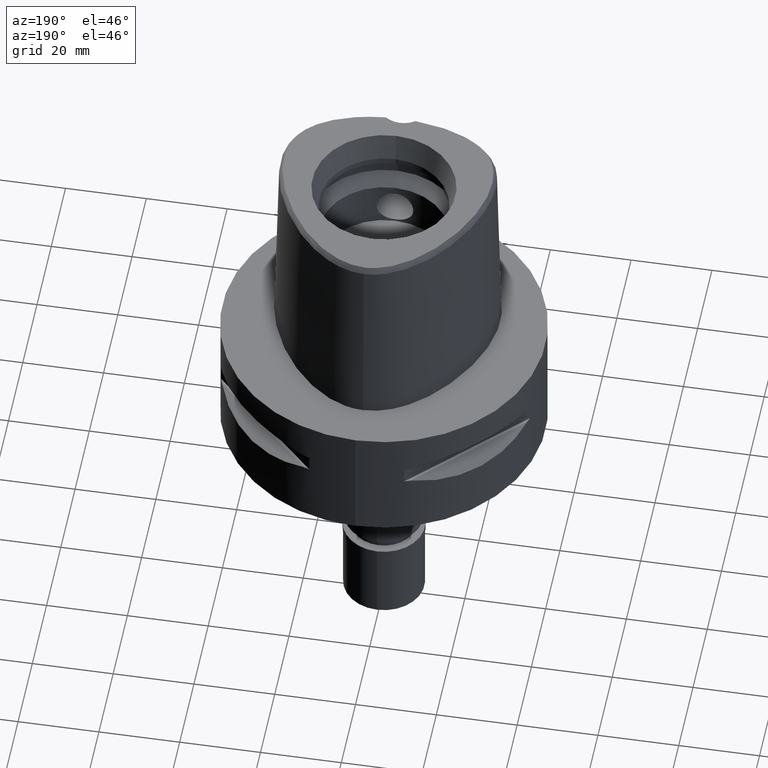
[diagram: clean part render]
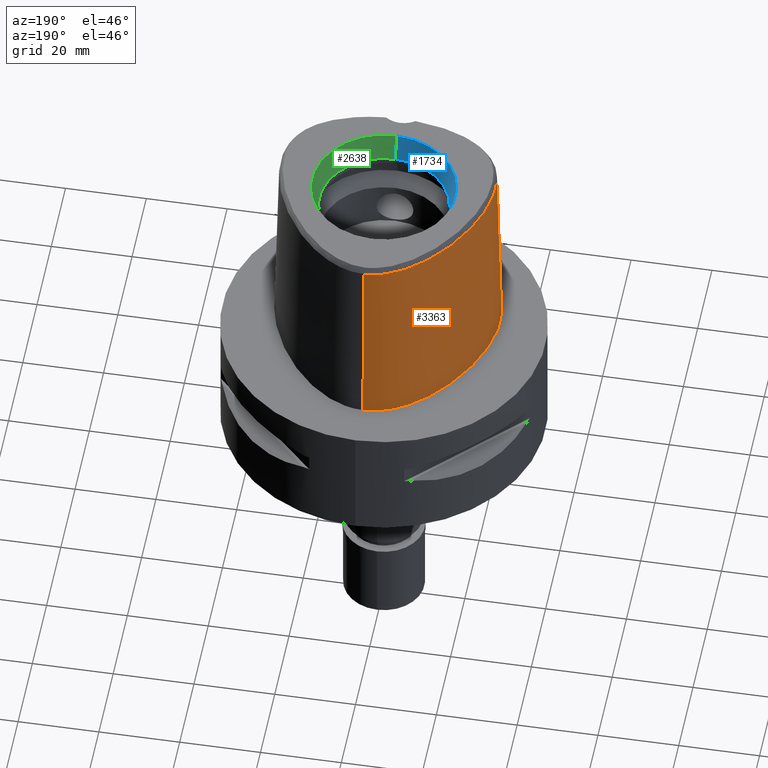
[diagram: same view with three faces highlighted in distinct colors, each labeled with its STEP entity id]
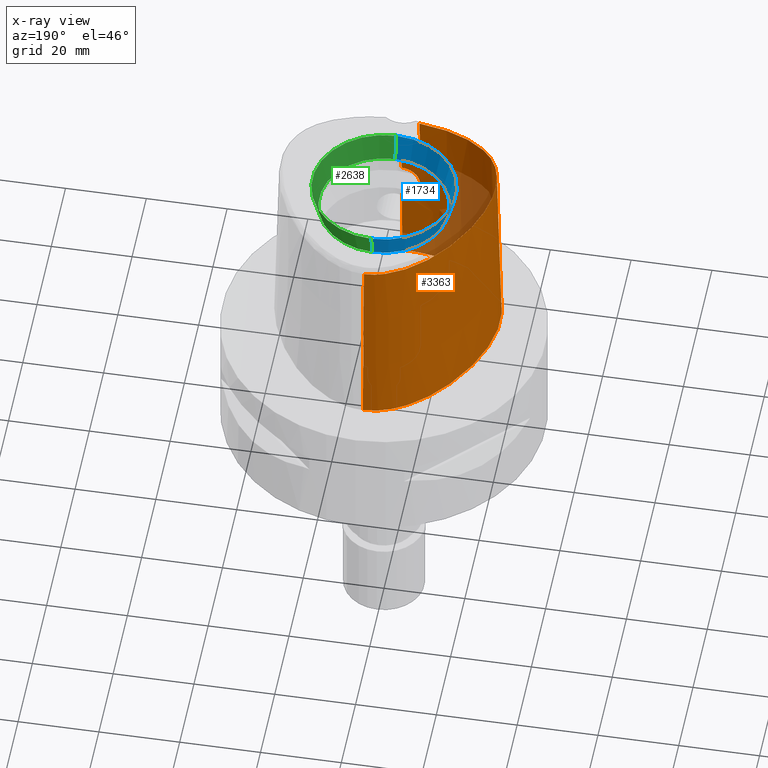
[diagram: x-ray of the same camera — body ghosted, the three highlighted faces saturated]
A machine part, auxiliary view with three faces highlighted in distinct colors.
The next image is the same camera in x-ray (body ghosted, the three faces saturated) — at least one of them is partly hidden behind the body in this view.
Their STEP definitions:

[orange] entity #3363 — the highlighted face is a freeform B-spline surface patch.
#4 = CARTESIAN_POINT ( 'NONE',  ( -12.96695409944999966, 23.75598709830999766, 15.19676982592999970 ) ) ;
#44 = CARTESIAN_POINT ( 'NONE',  ( -2.676740183219916247, -25.57499995757990519, 1.696888613943094842E-06 ) ) ;
#46 = CARTESIAN_POINT ( 'NONE',  ( -21.32746397970353058, 12.31340991043203736, 46.52070903171006933 ) ) ;
#53 = CARTESIAN_POINT ( 'NONE',  ( -22.35908247772999857, 12.90902243054000031, -0.9304144791388000435 ) ) ;
#82 = CARTESIAN_POINT ( 'NONE',  ( 0.5902542486794000176, 29.18556700316999653, 15.19676982592999970 ) ) ;
#92 = CARTESIAN_POINT ( 'NONE',  ( -0.5686770761324537737, -25.06378435148999628, 20.44999999999999574 ) ) ;
#99 = EDGE_CURVE ( 'NONE', #4863, #1665, #3198, .T. ) ;
#133 = CARTESIAN_POINT ( 'NONE',  ( -11.74634101485999871, -24.15815461099999695, -0.9304144791388000435 ) ) ;
#139 = CARTESIAN_POINT ( 'NONE',  ( -2.263615543289000344E-12, -25.06378435148999984, 20.44999999999999929 ) ) ;
#144 = CARTESIAN_POINT ( 'NONE',  ( -1.216282520757000218E-11, 28.41206021534999593, 46.52071719450999154 ) ) ;
#148 = CARTESIAN_POINT ( 'NONE',  ( -17.75297947878194194, 19.52218747291470891, 1.696888613943094842E-06 ) ) ;
#156 = CARTESIAN_POINT ( 'NONE',  ( -23.15870205040999963, -17.49879694150999754, 15.19676982592999970 ) ) ;
#160 = CARTESIAN_POINT ( 'NONE',  ( -4.560196949595972882, -24.30012304335829398, 42.17356967723666372 ) ) ;
#183 = CARTESIAN_POINT ( 'NONE',  ( -21.19046239198000237, -19.29498367019000327, 15.19676982592999970 ) ) ;
#213 = CARTESIAN_POINT ( 'NONE',  ( -26.90338677649999966, -8.653104855005999241, 31.32395413101000159 ) ) ;
#232 = EDGE_CURVE ( 'NONE', #4642, #3225, #4307, .T. ) ;
#251 = CARTESIAN_POINT ( 'NONE',  ( -4.160790905028489917, -24.72274124955079699, 26.84178595757723684 ) ) ;
#281 = CARTESIAN_POINT ( 'NONE',  ( -3.459328791567589878, -24.75086403572737836, 27.97515479135393690 ) ) ;
#310 = CARTESIAN_POINT ( 'NONE',  ( -4.068466760398210091, -24.72584630863896749, 27.03834969240105934 ) ) ;
#334 = CARTESIAN_POINT ( 'NONE',  ( -4.515545264917622426, -24.72200876241189249, 25.57765437788226492 ) ) ;
#346 = CARTESIAN_POINT ( 'NONE',  ( -12.44957317646186823, 23.16260189108908563, 46.52070903171006933 ) ) ;
#365 = CARTESIAN_POINT ( 'NONE',  ( -4.201380620708011548, -24.72153596869751624, 26.74670933510338600 ) ) ;
#371 = CARTESIAN_POINT ( 'NONE',  ( -15.29776364740622085, -22.96525386664651691, 1.696888613943094842E-06 ) ) ;
#389 = CARTESIAN_POINT ( 'NONE',  ( -1.754298049354468203, -25.02308377135080519, 20.80178576367021037 ) ) ;
#409 = CARTESIAN_POINT ( 'NONE',  ( -9.105791465440999488, 26.46675914470000279, 15.19676982592999970 ) ) ;
#416 = CARTESIAN_POINT ( 'NONE',  ( -3.864901861996108412, -24.85421915751041411, 22.59833191710549727 ) ) ;
#423 = CARTESIAN_POINT ( 'NONE',  ( -26.52477687770654668, -8.605158286269318779, 46.52070903171006933 ) ) ;
#430 = VERTEX_POINT ( 'NONE', #4848 ) ;
#434 = B_SPLINE_CURVE_WITH_KNOTS ( 'NONE', 3,
 ( #4468, #3697, #951, #4857, #2124, #3283, #148, #1334, #2893, #2511, #4083, #551, #2412, #2773, #4653, #1214, #2034, #3603, #2364, #1626, #371, #4345, #1139, #44, #2340 ),
 .UNSPECIFIED., .F., .F.,
 ( 4, 1, 1, 1, 1, 1, 1, 1, 1, 1, 1, 1, 1, 1, 1, 1, 1, 1, 1, 1, 1, 1, 4 ),
 ( 0.0000000000000000000, 0.04166666666717999679, 0.08333333333381000296, 0.1250000000004000134, 0.1666666666671000052, 0.2500000000002999823, 0.3333333333335999904, 0.4166666666668999985, 0.4583333333335000148, 0.5000000000001000311, 0.5416666666667999674, 0.5833333333333999837, 0.6250000000000000000, 0.6458333333333000637, 0.6666666666667000474, 0.6875000000000000000, 0.7083333333333000637, 0.7499999999999000799, 0.7916666666666000163, 0.8333333333332000326, 0.8749999999998000488, 0.9166666666664999852, 1.000000000000000000 ),
 .UNSPECIFIED. ) ;
#435 = CARTESIAN_POINT ( 'NONE',  ( 0.9115101685829000155, 29.56851176004000337, -0.9304144791388000435 ) ) ;
#445 = CARTESIAN_POINT ( 'NONE',  ( -2.039991806422710940, -25.00858519317930728, 20.93235562228155189 ) ) ;
#463 = CARTESIAN_POINT ( 'NONE',  ( -8.894849813582998976, 26.12169678294999997, 31.32395413101000159 ) ) ;
#471 = CARTESIAN_POINT ( 'NONE',  ( -3.245740051672679094, -24.92006245179830159, 21.81130774429479047 ) ) ;
#485 = CARTESIAN_POINT ( 'NONE',  ( -25.23075706188000211, 6.836210430589999554, -0.9304144791388000435 ) ) ;
#539 = CARTESIAN_POINT ( 'NONE',  ( -21.43542293252000164, -19.61750339135999965, -0.9304144791388000435 ) ) ;
#551 = CARTESIAN_POINT ( 'NONE',  ( -27.85475985490824158, -5.337968751067124096, 1.696888613943094842E-06 ) ) ;
#557 = CARTESIAN_POINT ( 'NONE',  ( -25.63065467244999951, -13.07945040987999974, 31.32395413101000159 ) ) ;
#579 = CARTESIAN_POINT ( 'NONE',  ( -27.06950059915999773, -5.357664959750001010, 31.32395413101000159 ) ) ;
#603 = CARTESIAN_POINT ( 'NONE',  ( 4.150897834611000279E-11, 29.57499999998999840, 1.066184177981999759E-13 ) ) ;
#608 = CARTESIAN_POINT ( 'NONE',  ( -24.46791223481000088, -15.89630654066999682, 15.19676982592999970 ) ) ;
#633 = CARTESIAN_POINT ( 'NONE',  ( -23.81701507534000228, -15.41783917288999994, 47.45113843608000082 ) ) ;
#645 = CARTESIAN_POINT ( 'NONE',  ( -4.409270466778650643, -24.71744676443888977, 26.16158622814598544 ) ) ;
#654 = EDGE_CURVE ( 'NONE', #3971, #4581, #434, .T. ) ;
#675 = CARTESIAN_POINT ( 'NONE',  ( -4.192714366872922760, -24.72178541175453148, 26.76740225217009339 ) ) ;
#706 = CARTESIAN_POINT ( 'NONE',  ( -3.900686180406078840, -24.73222278675475749, 27.34720371156313234 ) ) ;
#733 = CARTESIAN_POINT ( 'NONE',  ( -2.771982096821981045, -24.77983138410381869, 28.61121349796220770 ) ) ;
#757 = VECTOR ( 'NONE', #1257, 1000.000000000000000 ) ;
#761 = CARTESIAN_POINT ( 'NONE',  ( -4.183313010704308610, -24.72206008749306250, 26.78965014441773462 ) ) ;
#790 = CARTESIAN_POINT ( 'NONE',  ( -4.098306025962060950, -24.82420565877258767, 23.01795395542336209 ) ) ;
#801 = EDGE_CURVE ( 'NONE', #3225, #4581, #2749, .T. ) ;
#809 = CARTESIAN_POINT ( 'NONE',  ( 0.8850788443564999719, 29.16624661382000028, 15.19676982592999970 ) ) ;
#816 = CARTESIAN_POINT ( 'NONE',  ( -1.979024681901998317, -25.01188081594395030, 20.90239184516330795 ) ) ;
#824 = CARTESIAN_POINT ( 'NONE',  ( -25.64632274977693527, 1.601536978524827237, 46.52070903171006933 ) ) ;
#831 = CARTESIAN_POINT ( 'NONE',  ( 1.351075727145000046E-14, -24.83629963747999980, 29.55000000000000071 ) ) ;
#833 = CARTESIAN_POINT ( 'NONE',  ( -26.01411826823999718, 1.699187959295999972, 31.32395413101000159 ) ) ;
#848 = VECTOR ( 'NONE', #1548, 1000.000000000000000 ) ;
#870 = CARTESIAN_POINT ( 'NONE',  ( -3.613911253851773697, -24.88311648731248127, 22.23154152753994950 ) ) ;
#878 = CARTESIAN_POINT ( 'NONE',  ( -25.97777222568468858, -11.09135444108463631, 46.52070903171006933 ) ) ;
#886 = CARTESIAN_POINT ( 'NONE',  ( -0.6821018004605000629, 28.41983321172000032, 47.45113843608000082 ) ) ;
#895 = CARTESIAN_POINT ( 'NONE',  ( -3.310528231614962014, -24.91386642802240559, 21.87824841565021217 ) ) ;
#911 = CARTESIAN_POINT ( 'NONE',  ( -22.00846693021000178, 12.70659196787999967, 15.19676982592999970 ) ) ;
#936 = CARTESIAN_POINT ( 'NONE',  ( -6.695047936512000142, -25.26858194627000032, -0.9304144791388000435 ) ) ;
#951 = CARTESIAN_POINT ( 'NONE',  ( -3.149084865348400708, 29.34015620829518411, 1.696888613943094842E-06 ) ) ;
#982 = CARTESIAN_POINT ( 'NONE',  ( -17.98126123960000200, -20.40884543518999905, 47.45113843608000082 ) ) ;
#1002 = CARTESIAN_POINT ( 'NONE',  ( -2.373852718314000132, -25.21827345063000081, 15.19676982592999970 ) ) ;
#1031 = CARTESIAN_POINT ( 'NONE',  ( -20.94550185143999954, -18.97246394901000244, 31.32395413101000159 ) ) ;
#1044 = CARTESIAN_POINT ( 'NONE',  ( -2.249867388151588266, -24.79844751147267345, 28.95562542824131214 ) ) ;
#1068 = CARTESIAN_POINT ( 'NONE',  ( -4.231109674115412389, -24.80473516988229221, 23.32640847146424079 ) ) ;
#1079 = ORIENTED_EDGE ( 'NONE', *, *, #232, .F. ) ;
#1098 = CARTESIAN_POINT ( 'NONE',  ( -4.322680882349038356, -24.71812462909619512, 26.45319451590574644 ) ) ;
#1129 = CARTESIAN_POINT ( 'NONE',  ( -2.352923008994420861, -24.79499099983765475, 28.89459205334127034 ) ) ;
#1139 = CARTESIAN_POINT ( 'NONE',  ( -6.691850457994067192, -25.24546870784832464, 1.696888613943094842E-06 ) ) ;
#1158 = CARTESIAN_POINT ( 'NONE',  ( -3.205390121191868502, -24.76204090357539656, 28.22925085367149833 ) ) ;
#1182 = CARTESIAN_POINT ( 'NONE',  ( -2.724936705861479957, -24.96514019468438050, 21.34399272640474621 ) ) ;
#1190 = CARTESIAN_POINT ( 'NONE',  ( -4.602965076336000827, -24.35127131300999892, 40.00000000000000000 ) ) ;
#1214 = CARTESIAN_POINT ( 'NONE',  ( -25.63812386178506131, -14.80217771312856989, 1.696888613943094842E-06 ) ) ;
#1247 = CARTESIAN_POINT ( 'NONE',  ( -26.40443226301999857, 1.802817673322000047, 15.19676982592999970 ) ) ;
#1257 = DIRECTION ( 'NONE',  ( 1.153357997481029958E-12, 0.02499051293969065113, -0.9996876883622259902 ) ) ;
#1265 = CARTESIAN_POINT ( 'NONE',  ( -17.99241701171383312, -20.42933791837154445, 46.52070903171006933 ) ) ;
#1275 = CARTESIAN_POINT ( 'NONE',  ( -9.316733117297999911, 26.81182150644999851, -0.9304144791388000435 ) ) ;
#1300 = CARTESIAN_POINT ( 'NONE',  ( -21.30723583517000108, 12.30173104254999927, 47.45113843608000082 ) ) ;
#1320 = CARTESIAN_POINT ( 'NONE',  ( -26.73375370635000081, -11.30662581569000125, 15.19676982592999970 ) ) ;
#1334 = CARTESIAN_POINT ( 'NONE',  ( -22.33885462078929152, 12.89734372870236356, 1.696888613943094842E-06 ) ) ;
#1346 = CARTESIAN_POINT ( 'NONE',  ( -23.44929528159000043, -17.78045351951999820, -0.9304144791388000435 ) ) ;
#1372 = CARTESIAN_POINT ( 'NONE',  ( -25.26074793594000312, -12.91722051572000218, 47.45113843608000082 ) ) ;
#1392 = CARTESIAN_POINT ( 'NONE',  ( -20.70054131090000027, -18.64994422783999894, 47.45113843608000082 ) ) ;
#1414 = CARTESIAN_POINT ( 'NONE',  ( -6.528779356825999081, -24.06669574034000192, 47.45113843608000082 ) ) ;
#1459 = CARTESIAN_POINT ( 'NONE',  ( -4.550009659928393901, -24.73228693208369222, 25.03285394944880338 ) ) ;
#1464 = CARTESIAN_POINT ( 'NONE',  ( -1.541632273122166996, -24.57506718850696004, 40.00000010702067499 ) ) ;
#1482 = CARTESIAN_POINT ( 'NONE',  ( -1.722296434335556237, -24.81387508079694015, 29.21144792399115886 ) ) ;
#1510 = CARTESIAN_POINT ( 'NONE',  ( -4.340344041599786706, -24.78724112967248416, 23.63256450709621959 ) ) ;
#1541 = CARTESIAN_POINT ( 'NONE',  ( -2.404910036726956246, -24.79321437770926195, 28.86288751849652456 ) ) ;
#1548 = DIRECTION ( 'NONE',  ( -7.796119249352742759E-13, -0.02499051295403921166, -0.9996876883618673881 ) ) ;
#1549 = CARTESIAN_POINT ( 'NONE',  ( -23.83579125613339400, -15.43164133759503187, 46.52070903171006933 ) ) ;
#1554 = ORIENTED_EDGE ( 'NONE', *, *, #2233, .F. ) ;
#1566 = CARTESIAN_POINT ( 'NONE',  ( -3.172181247291940842, -24.76348918694393575, 28.26195868750457763 ) ) ;
#1573 = CARTESIAN_POINT ( 'NONE',  ( -20.71467387648102942, -18.66855143331303424, 46.52070903171006933 ) ) ;
#1582 = EDGE_CURVE ( 'NONE', #430, #1665, #2035, .T. ) ;
#1590 = CARTESIAN_POINT ( 'NONE',  ( -3.790579096131127645, -24.86307050843588584, 22.48323682071579910 ) ) ;
#1611 = CARTESIAN_POINT ( 'NONE',  ( -17.77103258632999783, 19.53703864451000172, -0.9304144791388000435 ) ) ;
#1626 = CARTESIAN_POINT ( 'NONE',  ( -18.55019647048347409, -21.45394527512893745, 1.696888613943094842E-06 ) ) ;
#1628 = CARTESIAN_POINT ( 'NONE',  ( -8.696078067630306663, 25.79654218449210745, 46.52070903171006933 ) ) ;
#1636 = CARTESIAN_POINT ( 'NONE',  ( -6.271543170535000655, 28.37237220527000048, -0.9304144791388000435 ) ) ;
#1645 = CARTESIAN_POINT ( 'NONE',  ( -1.769098408929655308, -25.02238666794958277, 20.80800104489354752 ) ) ;
#1660 = CARTESIAN_POINT ( 'NONE',  ( 0.8586475201301000393, 28.76398146759999719, 31.32395413101000159 ) ) ;
#1665 = VERTEX_POINT ( 'NONE', #3688 ) ;
#1690 = CARTESIAN_POINT ( 'NONE',  ( -16.83227270593999947, 18.76477913000999820, 47.45113843608000082 ) ) ;
#1711 = CARTESIAN_POINT ( 'NONE',  ( 0.8392169872735000258, -24.78463084256999949, 31.32395413101000159 ) ) ;
#1730 = CARTESIAN_POINT ( 'NONE',  ( 0.5642418783912999114, -25.19264542562000031, 15.19676982592999970 ) ) ;
#1754 = CARTESIAN_POINT ( 'NONE',  ( -27.70696775908000120, -8.754869100840998897, -0.9304144791388000435 ) ) ;
#1777 = CARTESIAN_POINT ( 'NONE',  ( -22.57751558802999980, -16.93548378546999800, 47.45113843608000082 ) ) ;
#1800 = CARTESIAN_POINT ( 'NONE',  ( -24.95856549451000106, -14.40983450638000107, 31.32395413101000159 ) ) ;
#1839 = CARTESIAN_POINT ( 'NONE',  ( -4.536359085940564029, -24.72544551544398317, 25.35955479186922545 ) ) ;
#1865 = CARTESIAN_POINT ( 'NONE',  ( -3.211065830876047134, -24.76179211193618102, 28.22361125334782628 ) ) ;
#1888 = CARTESIAN_POINT ( 'NONE',  ( -4.549921019085021889, -24.74001865967040459, 24.72536366591950241 ) ) ;
#1916 = CARTESIAN_POINT ( 'NONE',  ( -4.547910621292600375, -24.72974527037217740, 25.14250056300025093 ) ) ;
#1943 = CARTESIAN_POINT ( 'NONE',  ( -4.212409792926640861, -24.80756021599265893, 23.28005703556031847 ) ) ;
#1967 = CARTESIAN_POINT ( 'NONE',  ( -3.265305598819550958, -24.91820214815111356, 21.83126415608266413 ) ) ;
#1995 = CARTESIAN_POINT ( 'NONE',  ( -3.808704889424058493, -24.86093372512832289, 22.51074749453148272 ) ) ;
#2014 = CARTESIAN_POINT ( 'NONE',  ( 0.5727458549800999998, 28.78269979262000078, 31.32395413101000159 ) ) ;
#2025 = CARTESIAN_POINT ( 'NONE',  ( -1.791332517423405823, -25.02133236723706844, 20.81740716610698883 ) ) ;
#2034 = CARTESIAN_POINT ( 'NONE',  ( -24.77458490069677310, -16.12173825608669020, 1.696888613943094842E-06 ) ) ;
#2035 = B_SPLINE_CURVE_WITH_KNOTS ( 'NONE', 3,
 ( #4051, #3708, #160, #2980 ),
 .UNSPECIFIED., .F., .F.,
 ( 4, 4 ),
 ( 0.0000000000000000000, 1.000000000000000000 ),
 .UNSPECIFIED. ) ;
#2037 = CARTESIAN_POINT ( 'NONE',  ( -11.43620194735988527, -23.01113699852720273, 46.52070903171006933 ) ) ;
#2045 = CARTESIAN_POINT ( 'NONE',  ( -12.70057963594000050, 23.45048169753999900, 31.32395413101000159 ) ) ;
#2066 = CARTESIAN_POINT ( 'NONE',  ( -24.48145224539000253, 6.531540503480000481, 31.32395413101000159 ) ) ;
#2072 = CARTESIAN_POINT ( 'NONE',  ( -2.263615543289000344E-12, -25.06378435148999984, 20.44999999999999929 ) ) ;
#2090 = CARTESIAN_POINT ( 'NONE',  ( 0.5552374612807000620, 28.37983258207000148, 47.45113843608000082 ) ) ;
#2111 = CARTESIAN_POINT ( 'NONE',  ( -18.36798846920000017, -21.11924012302999998, 15.19676982592999970 ) ) ;
#2124 = CARTESIAN_POINT ( 'NONE',  ( -9.304563384418836236, 26.79191402619571605, 1.696888613943094842E-06 ) ) ;
#2130 = CARTESIAN_POINT ( 'NONE',  ( -15.15935282126999972, -22.61055604351999904, 15.19676982592999970 ) ) ;
#2156 = CARTESIAN_POINT ( 'NONE',  ( -11.43012068970999984, -22.98864608925000041, 47.45113843608000082 ) ) ;
#2184 = CARTESIAN_POINT ( 'NONE',  ( -26.00056140895000212, -13.24168030404999996, 15.19676982592999970 ) ) ;
#2206 = CARTESIAN_POINT ( 'NONE',  ( 0.5548736449273000693, -24.38637835853000269, 47.45113843608000082 ) ) ;
#2218 = CARTESIAN_POINT ( 'NONE',  ( -4.544092989177467068, -24.72741046393034381, 25.25074796833678548 ) ) ;
#2233 = EDGE_CURVE ( 'NONE', #4863, #4642, #2534, .T. ) ;
#2249 = CARTESIAN_POINT ( 'NONE',  ( -2.492689275654131009, -24.79011428768477288, 28.80645659143013049 ) ) ;
#2254 = CARTESIAN_POINT ( 'NONE',  ( -3.083106526350837484, -24.50056604430937668, 40.00000010702067499 ) ) ;
#2277 = CARTESIAN_POINT ( 'NONE',  ( -2.652045588672492737, -24.78435656486180960, 28.70018943685095536 ) ) ;
#2300 = CARTESIAN_POINT ( 'NONE',  ( -3.029613744918487228, -24.76954858878826471, 28.39612668127801953 ) ) ;
#2330 = CARTESIAN_POINT ( 'NONE',  ( -1.733314166580482096, -24.81359117582311313, 29.20692116581611586 ) ) ;
#2340 = CARTESIAN_POINT ( 'NONE',  ( -1.821166016816000198E-11, -25.57499999999999929, 1.130207039067999908E-13 ) ) ;
#2364 = CARTESIAN_POINT ( 'NONE',  ( -21.42129056786815866, -19.59889645043415740, 1.696888613943094842E-06 ) ) ;
#2372 = CARTESIAN_POINT ( 'NONE',  ( 0.8322161959036998846, 28.36171632138999854, 47.45113843608000082 ) ) ;
#2378 = CARTESIAN_POINT ( 'NONE',  ( -3.227056402119920619, -24.92183285210592203, 21.79239637393084905 ) ) ;
#2393 = CARTESIAN_POINT ( 'NONE',  ( -8.683908161726000330, 25.77663442120000070, 47.45113843608000082 ) ) ;
#2404 = CARTESIAN_POINT ( 'NONE',  ( -2.224291573385094534, -24.99814500580200161, 21.02832322412897170 ) ) ;
#2412 = CARTESIAN_POINT ( 'NONE',  ( -27.68378749615260048, -8.751933588395804264, 1.696888613943094842E-06 ) ) ;
#2413 = CARTESIAN_POINT ( 'NONE',  ( -5.572548441001773156, -24.09475885057431910, 46.52070903171006933 ) ) ;
#2421 = FACE_OUTER_BOUND ( 'NONE', #4134, .T. ) ;
#2430 = CARTESIAN_POINT ( 'NONE',  ( -3.232655617673358517, -24.92130312931368508, 21.79804365392788768 ) ) ;
#2440 = CARTESIAN_POINT ( 'NONE',  ( -16.85032607016102801, 18.77963051275423112, 46.52070903171006933 ) ) ;
#2448 = CARTESIAN_POINT ( 'NONE',  ( -0.7475778414334000033, 29.63225228734000183, -0.9304144791388000435 ) ) ;
#2453 = CARTESIAN_POINT ( 'NONE',  ( -1.748501813549788952, -25.02335543620021951, 20.79936485166494009 ) ) ;
#2469 = CARTESIAN_POINT ( 'NONE',  ( -27.56041892247000291, -1.762105663753000151, -0.9304144791388000435 ) ) ;
#2484 = EDGE_CURVE ( 'NONE', #430, #5023, #3219, .T. ) ;
#2492 = ORIENTED_EDGE ( 'NONE', *, *, #801, .F. ) ;
#2497 = CARTESIAN_POINT ( 'NONE',  ( -2.354156828575999949, -24.81494221283999835, 31.32395413101000159 ) ) ;
#2511 = CARTESIAN_POINT ( 'NONE',  ( -26.77222810163859279, 1.900468739095571458, 1.696888613943094842E-06 ) ) ;
#2534 = B_SPLINE_CURVE_WITH_KNOTS ( 'NONE', 3,
 ( #3166, #2756, #4353, #831 ),
 .UNSPECIFIED., .F., .F.,
 ( 4, 4 ),
 ( 0.0000000000000000000, 1.000000000000000000 ),
 .UNSPECIFIED. ) ;
#2540 = CARTESIAN_POINT ( 'NONE',  ( -27.47379251510999865, -5.347524336908000109, 15.19676982592999970 ) ) ;
#2568 = CARTESIAN_POINT ( 'NONE',  ( -2.334460938838000210, -24.41161097504999944, 47.45113843608000082 ) ) ;
#2592 = CARTESIAN_POINT ( 'NONE',  ( 0.5595577616593000458, -24.78951189208000017, 31.32395413101000159 ) ) ;
#2605 = CARTESIAN_POINT ( 'NONE',  ( -2.520279592225763921, -24.78912363236072380, 28.78824203054437092 ) ) ;
#2628 = CARTESIAN_POINT ( 'NONE',  ( -1.371865276111020826, -24.82198728018540734, 29.33894196721387360 ) ) ;
#2640 = ORIENTED_EDGE ( 'NONE', *, *, #2918, .T. ) ;
#2657 = CARTESIAN_POINT ( 'NONE',  ( -3.972636365745898512, -24.72937778087138128, 27.22257177644720727 ) ) ;
#2684 = CARTESIAN_POINT ( 'NONE',  ( -1.703896036125204239, -24.81434470502067313, 29.21892603896907303 ) ) ;
#2710 = CARTESIAN_POINT ( 'NONE',  ( -4.441732659387153781, -24.76864030037671682, 24.00221451032558306 ) ) ;
#2718 = CARTESIAN_POINT ( 'NONE',  ( -2.263615543289000344E-12, -25.06378435148999984, 20.44999999999999929 ) ) ;
#2741 = CARTESIAN_POINT ( 'NONE',  ( -1.843442154716284476, -25.01881181296646517, 20.83994273181323109 ) ) ;
#2749 = LINE ( 'NONE', #2718, #848 ) ;
#2750 = CARTESIAN_POINT ( 'NONE',  ( -1.216282520757000218E-11, 28.41206021534999593, 46.52071719450999154 ) ) ;
#2756 = CARTESIAN_POINT ( 'NONE',  ( -4.851555798897048176E-09, -24.66214466420031570, 36.51666702990951308 ) ) ;
#2773 = CARTESIAN_POINT ( 'NONE',  ( -27.10051713275215235, -11.41106444146613619, 1.696888613943094842E-06 ) ) ;
#2774 = CARTESIAN_POINT ( 'NONE',  ( -2.897876354792253917, 28.19692242654434722, 46.52070903171006933 ) ) ;
#2783 = CARTESIAN_POINT ( 'NONE',  ( -24.10679983713999874, 6.379205539925000501, 47.45113843608000082 ) ) ;
#2790 = CARTESIAN_POINT ( 'NONE',  ( -1.165430911964715266, -25.05044697737378101, 20.55812161079716560 ) ) ;
#2796 = CARTESIAN_POINT ( 'NONE',  ( -26.68853359099212241, -5.367220537273017733, 46.52070903171006933 ) ) ;
#2803 = CARTESIAN_POINT ( 'NONE',  ( -27.16099298882999946, -1.823107492027000065, 15.19676982592999970 ) ) ;
#2813 = CARTESIAN_POINT ( 'NONE',  ( -3.825895809632591682, -24.85889621362733592, 22.53711802513201334 ) ) ;
#2832 = CARTESIAN_POINT ( 'NONE',  ( -12.43420517243000134, 23.14497629677000035, 47.45113843608000082 ) ) ;
#2840 = CARTESIAN_POINT ( 'NONE',  ( -3.994669282579148550, -24.83794919743795049, 22.82040209576782885 ) ) ;
#2858 = CARTESIAN_POINT ( 'NONE',  ( 0.6077626423787999554, 29.58843421373000027, -0.9304144791388000435 ) ) ;
#2876 = ORIENTED_EDGE ( 'NONE', *, *, #2484, .T. ) ;
#2880 = CARTESIAN_POINT ( 'NONE',  ( -27.30517726778999688, -8.703986977923001689, 15.19676982592999970 ) ) ;
#2893 = CARTESIAN_POINT ( 'NONE',  ( -25.20914246044497631, 6.827421858971731261, 1.696888613943094842E-06 ) ) ;
#2904 = CARTESIAN_POINT ( 'NONE',  ( 0.8321919557106000065, -24.38153432617999883, 47.45113843608000082 ) ) ;
#2918 = EDGE_CURVE ( 'NONE', #5023, #3971, #4851, .T. ) ;
#2928 = CARTESIAN_POINT ( 'NONE',  ( -15.01246784650999899, -22.23414198509999906, 31.32395413101000159 ) ) ;
#2949 = CARTESIAN_POINT ( 'NONE',  ( -27.87808443105999601, -5.337383714067000184, -0.9304144791388000435 ) ) ;
#2976 = CARTESIAN_POINT ( 'NONE',  ( -2.393548608051999871, -25.62160468843000061, -0.9304144791388000435 ) ) ;
#2980 = CARTESIAN_POINT ( 'NONE',  ( -4.602965076336000827, -24.35127131300999892, 40.00000000000000000 ) ) ;
#3015 = CARTESIAN_POINT ( 'NONE',  ( -4.304263127651236864, -24.79330400446726657, 23.52125164125748569 ) ) ;
#3041 = CARTESIAN_POINT ( 'NONE',  ( -1.858668925437444663, -24.81033890557711175, 29.15501574767494120 ) ) ;
#3069 = CARTESIAN_POINT ( 'NONE',  ( -0.2769662723017555228, -24.83629963748000335, 29.55000000000000426 ) ) ;
#3101 = CARTESIAN_POINT ( 'NONE',  ( -2.182391158261990149, -24.80062287573364799, 28.99314679185161125 ) ) ;
#3127 = CARTESIAN_POINT ( 'NONE',  ( -1.451045074373000022E-08, -24.57504746727000011, 40.00000005214000254 ) ) ;
#3131 = CARTESIAN_POINT ( 'NONE',  ( -26.38518529509013888, -1.941591755871096003, 46.52070903171006933 ) ) ;
#3151 = B_SPLINE_SURFACE_WITH_KNOTS ( 'NONE', 3, 3, ( 
 ( #435, #809, #1660, #2372 ),
 ( #2858, #82, #2014, #2090 ),
 ( #2448, #3588, #3221, #886 ),
 ( #3950, #4047, #3249, #3195 ),
 ( #1636, #3168, #3611, #4768 ),
 ( #1275, #409, #463, #2393 ),
 ( #4407, #4, #2045, #2832 ),
 ( #1611, #4745, #4817, #1690 ),
 ( #53, #911, #4027, #1300 ),
 ( #485, #4382, #2066, #2783 ),
 ( #4354, #1247, #833, #4429 ),
 ( #2469, #2803, #4092, #4865 ),
 ( #2949, #2540, #579, #4072 ),
 ( #1754, #2880, #213, #4164 ),
 ( #3318, #1320, #4891, #4138 ),
 ( #4839, #2184, #557, #1372 ),
 ( #3269, #3731, #1800, #4914 ),
 ( #4501, #608, #3362, #633 ),
 ( #1346, #156, #3705, #1777 ),
 ( #539, #183, #1031, #1392 ),
 ( #3754, #2111, #3685, #982 ),
 ( #4478, #2130, #2928, #4112 ),
 ( #133, #4936, #3340, #2156 ),
 ( #936, #4520, #4448, #1414 ),
 ( #2976, #1002, #2497, #2568 ),
 ( #4552, #1730, #2592, #2206 ),
 ( #3779, #3290, #1711, #2904 ) ),
 .UNSPECIFIED., .F., .F., .F.,
 ( 4, 1, 1, 1, 1, 1, 1, 1, 1, 1, 1, 1, 1, 1, 1, 1, 1, 1, 1, 1, 1, 1, 1, 1, 4 ),
 ( 4, 4 ),
 ( -0.01204223939043000055, 0.0000000000000000000, 0.04166666666717999679, 0.08333333333381000296, 0.1250000000004000134, 0.1666666666671000052, 0.2500000000002999823, 0.3333333333335999904, 0.4166666666668999985, 0.4583333333335000148, 0.5000000000001000311, 0.5416666666667999674, 0.5833333333333999837, 0.6250000000000000000, 0.6458333333333000637, 0.6666666666667000474, 0.6875000000000000000, 0.7083333333333000637, 0.7499999999999000799, 0.7916666666666000163, 0.8333333333332000326, 0.8749999999998000488, 0.9166666666664999852, 1.000000000000000000, 1.008851807892999997 ),
 ( 5.286513449221000219E-09, 0.9999997303877999899 ),
 .UNSPECIFIED. ) ;
#3166 = CARTESIAN_POINT ( 'NONE',  ( -1.451045074373000022E-08, -24.57504746727000011, 40.00000005214000254 ) ) ;
#3168 = CARTESIAN_POINT ( 'NONE',  ( -6.114741924325000078, 27.99897533470999988, 15.19676982592999970 ) ) ;
#3178 = CARTESIAN_POINT ( 'NONE',  ( -3.896481458106407114, -24.85034248778503496, 22.65020889969156315 ) ) ;
#3195 = CARTESIAN_POINT ( 'NONE',  ( -2.892852102177999818, 28.17405737595999682, 47.45113843608000082 ) ) ;
#3198 = B_SPLINE_CURVE_WITH_KNOTS ( 'NONE', 3,
 ( #3127, #1464, #2254, #1190 ),
 .UNSPECIFIED., .F., .F.,
 ( 4, 4 ),
 ( 0.0000000000000000000, 1.000000000000000000 ),
 .UNSPECIFIED. ) ;
#3219 = B_SPLINE_CURVE_WITH_KNOTS ( 'NONE', 3,
 ( #3544, #2413, #4291, #2037, #3967, #1265, #1573, #4401, #1549, #3604, #4346, #878, #423, #2796, #3131, #824, #3994, #46, #2440, #346, #1628, #5127, #2774, #5070, #2750 ),
 .UNSPECIFIED., .F., .F.,
 ( 4, 1, 1, 1, 1, 1, 1, 1, 1, 1, 1, 1, 1, 1, 1, 1, 1, 1, 1, 1, 1, 1, 4 ),
 ( 0.0000000000000000000, 0.03735859270279697636, 0.08111502030725818713, 0.1248714479116144749, 0.1686278755159707488, 0.2123843031204319665, 0.2561407307247882681, 0.2780189445269664605, 0.2998971583291445420, 0.3217753721314276505, 0.3436535859336058429, 0.3874100135379621723, 0.4311664411423184462, 0.4749228687467796362, 0.5186792963511359655, 0.5624357239554922394, 0.6499485791643098143, 0.7374614343731272781, 0.8249742895818399369, 0.8687307171863011268, 0.9124871447906468536, 0.9562435723950346578, 1.000000000000000000 ),
 .UNSPECIFIED. ) ;
#3221 = CARTESIAN_POINT ( 'NONE',  ( -0.7039271474514999793, 28.82397290359000053, 31.32395413101000159 ) ) ;
#3225 = VERTEX_POINT ( 'NONE', #139 ) ;
#3249 = CARTESIAN_POINT ( 'NONE',  ( -2.979937750290999610, 28.57037856191000103, 31.32395413101000159 ) ) ;
#3269 = CARTESIAN_POINT ( 'NONE',  ( -25.65830880169000139, -14.81383149363000129, -0.9304144791388000435 ) ) ;
#3283 = CARTESIAN_POINT ( 'NONE',  ( -13.21796077743154463, 24.04386715535209618, 1.696888613943094842E-06 ) ) ;
#3290 = CARTESIAN_POINT ( 'NONE',  ( 0.8462420188363999340, -25.18772735897000103, 15.19676982592999970 ) ) ;
#3318 = CARTESIAN_POINT ( 'NONE',  ( -27.12297207986999936, -11.41745865541999905, -0.9304144791388000435 ) ) ;
#3340 = CARTESIAN_POINT ( 'NONE',  ( -11.53552746475999946, -23.37848226317000311, 31.32395413101000159 ) ) ;
#3362 = CARTESIAN_POINT ( 'NONE',  ( -24.14246365508000025, -15.65707285677999927, 31.32395413101000159 ) ) ;
#3363 = ADVANCED_FACE ( 'NONE', ( #2421 ), #3151, .T. ) ;
#3407 = CARTESIAN_POINT ( 'NONE',  ( 1.351075727145000046E-14, -24.83629963747999980, 29.55000000000000071 ) ) ;
#3433 = CARTESIAN_POINT ( 'NONE',  ( -0.5644801122155230777, -24.83439132317404585, 29.52465347867223500 ) ) ;
#3455 = CARTESIAN_POINT ( 'NONE',  ( -4.140463633211716399, -24.72339410617370703, 26.88684090364256818 ) ) ;
#3490 = CARTESIAN_POINT ( 'NONE',  ( -4.549596676163406350, -24.73138399865684178, 25.07048059282040242 ) ) ;
#3516 = CARTESIAN_POINT ( 'NONE',  ( -3.125212091966715011, -24.76551320166747061, 28.30726214217371606 ) ) ;
#3544 = CARTESIAN_POINT ( 'NONE',  ( -4.472216406693000579, -24.20008985674000357, 46.52070903171000538 ) ) ;
#3588 = CARTESIAN_POINT ( 'NONE',  ( -0.7257524944423999758, 29.22811259547000162, 15.19676982592999970 ) ) ;
#3597 = CARTESIAN_POINT ( 'NONE',  ( -3.702709904148361097, -24.87336589807970455, 22.35148037005134469 ) ) ;
#3603 = CARTESIAN_POINT ( 'NONE',  ( -23.43253025690747293, -17.76420407192220807, 1.696888613943094842E-06 ) ) ;
#3604 = CARTESIAN_POINT ( 'NONE',  ( -24.62887906780758129, -14.21948995895094114, 46.52070903171006933 ) ) ;
#3611 = CARTESIAN_POINT ( 'NONE',  ( -5.957940678115000388, 27.62557846414999929, 31.32395413101000159 ) ) ;
#3646 = CARTESIAN_POINT ( 'NONE',  ( -3.957281473797837013, -24.84276546235789951, 22.75305380327888471 ) ) ;
#3671 = ORIENTED_EDGE ( 'NONE', *, *, #99, .T. ) ;
#3685 = CARTESIAN_POINT ( 'NONE',  ( -18.17462485440000108, -20.76404277911000307, 31.32395413101000159 ) ) ;
#3688 = CARTESIAN_POINT ( 'NONE',  ( -4.602965076336000827, -24.35127131300999892, 40.00000000000000000 ) ) ;
#3697 = CARTESIAN_POINT ( 'NONE',  ( -1.049694954993315665, 29.57499995758357869, 1.696888613943094842E-06 ) ) ;
#3702 = CARTESIAN_POINT ( 'NONE',  ( -1.451045074373000022E-08, -24.57504746727000011, 40.00000005214000254 ) ) ;
#3705 = CARTESIAN_POINT ( 'NONE',  ( -22.86810881921999794, -17.21714036348999954, 31.32395413101000159 ) ) ;
#3708 = CARTESIAN_POINT ( 'NONE',  ( -4.516620047288355977, -24.24973673731960844, 44.34713935447333455 ) ) ;
#3731 = CARTESIAN_POINT ( 'NONE',  ( -25.30843714810000122, -14.61183300000999985, 15.19676982592999970 ) ) ;
#3754 = CARTESIAN_POINT ( 'NONE',  ( -18.56135208398999836, -21.47443746695999778, -0.9304144791388000435 ) ) ;
#3762 = CARTESIAN_POINT ( 'NONE',  ( -1.821166016816000198E-11, -25.57499999999999929, 1.130207039067999908E-13 ) ) ;
#3779 = CARTESIAN_POINT ( 'NONE',  ( 0.8532670503992999533, -25.59082387535999814, -0.9304144791388000435 ) ) ;
#3794 = CARTESIAN_POINT ( 'NONE',  ( -4.525164906393183806, -24.74975131237588144, 24.43996234641522847 ) ) ;
#3824 = CARTESIAN_POINT ( 'NONE',  ( -2.510338385227627978, -24.78948177504954842, 28.79484028636986892 ) ) ;
#3850 = CARTESIAN_POINT ( 'NONE',  ( -3.192130741524555670, -24.76262039752747057, 28.24235843700019899 ) ) ;
#3874 = CARTESIAN_POINT ( 'NONE',  ( -4.198926685529648317, -24.72160612811942570, 26.75259212959134203 ) ) ;
#3882 = CARTESIAN_POINT ( 'NONE',  ( -1.216282520757000218E-11, 28.41206021534999593, 46.52071719450999154 ) ) ;
#3909 = CARTESIAN_POINT ( 'NONE',  ( -4.219931661120545741, -24.80642684597902559, 23.29859562715319043 ) ) ;
#3933 = CARTESIAN_POINT ( 'NONE',  ( -2.349040166741097391, -24.99044712210596231, 21.10040994411975745 ) ) ;
#3950 = CARTESIAN_POINT ( 'NONE',  ( -3.154109046518000170, 29.36302093380000144, -0.9304144791388000435 ) ) ;
#3958 = CARTESIAN_POINT ( 'NONE',  ( -4.156037652092050116, -24.81598364112165100, 23.14362525770355816 ) ) ;
#3967 = CARTESIAN_POINT ( 'NONE',  ( -14.87405714085635644, -21.87944447072757015, 46.52070903171006933 ) ) ;
#3971 = VERTEX_POINT ( 'NONE', #603 ) ;
#3987 = CARTESIAN_POINT ( 'NONE',  ( -3.399231802462701513, -24.90521494129051661, 21.97387284700376497 ) ) ;
#3994 = CARTESIAN_POINT ( 'NONE',  ( -24.12841474588411117, 6.387994236496208345, 46.52070903171006933 ) ) ;
#4027 = CARTESIAN_POINT ( 'NONE',  ( -21.65785138269000143, 12.50416150521999903, 31.32395413101000159 ) ) ;
#4034 = CARTESIAN_POINT ( 'NONE',  ( -2.978031838722651425, -24.94531787462534211, 21.54303487591532118 ) ) ;
#4047 = CARTESIAN_POINT ( 'NONE',  ( -3.067023398404999934, 28.96669974786000168, 15.19676982592999970 ) ) ;
#4051 = CARTESIAN_POINT ( 'NONE',  ( -4.472216406693000579, -24.20008985674000357, 46.52070903171000538 ) ) ;
#4072 = CARTESIAN_POINT ( 'NONE',  ( -26.66520868322000126, -5.367805582591000046, 47.45113843608000082 ) ) ;
#4083 = CARTESIAN_POINT ( 'NONE',  ( -27.53737507657890760, -1.765625006418137355, 1.696888613943094842E-06 ) ) ;
#4092 = CARTESIAN_POINT ( 'NONE',  ( -26.76156705520000045, -1.884109320299999890, 31.32395413101000159 ) ) ;
#4112 = CARTESIAN_POINT ( 'NONE',  ( -14.86558287175999915, -21.85772792668999998, 47.45113843608000082 ) ) ;
#4134 = EDGE_LOOP ( 'NONE', ( #2492, #1079, #1554, #3671, #5055, #2876, #2640, #4636 ) ) ;
#4138 = CARTESIAN_POINT ( 'NONE',  ( -25.95531695931000371, -11.08496013621999943, 47.45113843608000082 ) ) ;
#4164 = CARTESIAN_POINT ( 'NONE',  ( -26.50159628520999888, -8.602222732087998480, 47.45113843608000082 ) ) ;
#4177 = CARTESIAN_POINT ( 'NONE',  ( -2.944900302942788262, -24.77298581947537670, 28.46923970402292525 ) ) ;
#4198 = CARTESIAN_POINT ( 'NONE',  ( -4.207829589086126809, -24.80824686016802616, 23.26889234074826618 ) ) ;
#4221 = CARTESIAN_POINT ( 'NONE',  ( 1.351075727145000046E-14, -24.83629963747999980, 29.55000000000000071 ) ) ;
#4227 = CARTESIAN_POINT ( 'NONE',  ( -4.406213798168594487, -24.77565163120076974, 23.85472934568122128 ) ) ;
#4257 = CARTESIAN_POINT ( 'NONE',  ( -1.482686770873181681, -24.81966152212503118, 29.30289444250970021 ) ) ;
#4282 = CARTESIAN_POINT ( 'NONE',  ( -4.256460948041317138, -24.80084657812259863, 23.39133378591559520 ) ) ;
#4291 = CARTESIAN_POINT ( 'NONE',  ( -7.937300651754740421, -23.78071178103651917, 46.52070903171006933 ) ) ;
#4307 = B_SPLINE_CURVE_WITH_KNOTS ( 'NONE', 3,
 ( #3407, #3069, #3433, #5092, #5034, #2628, #4257, #5010, #4673, #2684, #1482, #2330, #3041, #4982, #3101, #1044, #1129, #1541, #4645, #2249, #3824, #2605, #2277, #733, #4177, #2300, #3516, #1566, #3850, #1158, #1865, #281, #4612, #706, #2657, #310, #4566, #3455, #251, #761, #675, #3874, #365, #1098, #645, #4589, #334, #1839, #2218, #1916, #3490, #1459, #1888, #3794, #2710, #4227, #1510, #3015, #4282, #1068, #3909, #1943, #4198, #3958, #790, #2840, #3646, #3178, #416, #2813, #1995, #4363, #1590, #3597, #870, #4393, #3987, #895, #1967, #471, #2430, #2378, #4034, #1182, #3933, #2404, #445, #816, #4416, #2741, #2025, #1645, #389, #2453, #2790, #92, #2072 ),
 .UNSPECIFIED., .F., .F.,
 ( 4, 2, 2, 1, 1, 1, 2, 2, 2, 2, 1, 1, 2, 2, 2, 1, 1, 1, 2, 2, 2, 2, 2, 1, 1, 2, 2, 2, 2, 1, 2, 2, 2, 2, 1, 1, 1, 2, 2, 2, 2, 1, 1, 2, 2, 2, 1, 1, 1, 2, 2, 2, 2, 2, 1, 1, 2, 2, 4 ),
 ( 0.0000000000000000000, 0.06249999999999726608, 0.09374999999999589217, 0.1093749999999952122, 0.1171874999999947542, 0.1210937499999943795, 0.1230468749999941991, 0.1249999999999940187, 0.1562499999999904798, 0.1718749999999887035, 0.1796874999999878431, 0.1835937499999873990, 0.1855468749999873435, 0.1874999999999872879, 0.2187499999999886202, 0.2343749999999893141, 0.2421874999999895917, 0.2460937499999897582, 0.2480468749999895361, 0.2499999999999893419, 0.3124999999999858447, 0.3437499999999844014, 0.3593749999999836797, 0.3671874999999837352, 0.3710937499999834022, 0.3730468749999836242, 0.3749999999999838463, 0.4374999999999978351, 0.4687500000000044964, 0.4843750000000081601, 0.4921875000000096589, 0.5000000000000111022, 0.5625000000000244249, 0.5937500000000310862, 0.6093750000000344169, 0.6171875000000360822, 0.6210937500000371925, 0.6230468750000378586, 0.6250000000000384137, 0.6562500000000385247, 0.6718750000000386358, 0.6796875000000384137, 0.6835937500000380806, 0.6855468750000378586, 0.6875000000000376366, 0.7187500000000346390, 0.7343750000000331957, 0.7421875000000324185, 0.7460937500000323075, 0.7480468750000319744, 0.7500000000000316414, 0.8125000000000219824, 0.8437500000000169864, 0.8593750000000142109, 0.8671875000000128786, 0.8710937500000122125, 0.8730468750000118794, 0.8750000000000115463, 1.000000000000000000 ),
 .UNSPECIFIED. ) ;
#4345 = CARTESIAN_POINT ( 'NONE',  ( -11.74025984367014708, -24.13566402148638801, 1.696888613943094842E-06 ) ) ;
#4346 = CARTESIAN_POINT ( 'NONE',  ( -25.28208905153790909, -12.92658008282974258, 46.52070903171006933 ) ) ;
#4353 = CARTESIAN_POINT ( 'NONE',  ( -4.860369754694330793E-09, -24.74922215084236754, 33.03333351495496117 ) ) ;
#4354 = CARTESIAN_POINT ( 'NONE',  ( -26.79474625778999908, 1.906447387347000033, -0.9304144791388000435 ) ) ;
#4363 = CARTESIAN_POINT ( 'NONE',  ( -3.797137772289172375, -24.86229941254662990, 22.49313827486260209 ) ) ;
#4382 = CARTESIAN_POINT ( 'NONE',  ( -24.85610465363000188, 6.683875467034999573, 15.19676982592999970 ) ) ;
#4393 = CARTESIAN_POINT ( 'NONE',  ( -3.472208232089673885, -24.89783358727838092, 22.05860165752379487 ) ) ;
#4401 = CARTESIAN_POINT ( 'NONE',  ( -22.59428085107253636, -16.95173346409751147, 46.52070903171006933 ) ) ;
#4407 = CARTESIAN_POINT ( 'NONE',  ( -13.23332856296999971, 24.06149249907999987, -0.9304144791388000435 ) ) ;
#4416 = CARTESIAN_POINT ( 'NONE',  ( -1.888484788633898459, -25.01654759054923716, 20.86028587658051592 ) ) ;
#4429 = CARTESIAN_POINT ( 'NONE',  ( -25.62380427347000023, 1.595558245270999986, 47.45113843608000082 ) ) ;
#4448 = CARTESIAN_POINT ( 'NONE',  ( -6.584202216720999701, -24.46732447564999902, 31.32395413101000159 ) ) ;
#4468 = CARTESIAN_POINT ( 'NONE',  ( 4.150897834611000279E-11, 29.57499999998999840, 1.066184177981999759E-13 ) ) ;
#4478 = CARTESIAN_POINT ( 'NONE',  ( -15.30623779601999956, -22.98697010193000168, -0.9304144791388000435 ) ) ;
#4501 = CARTESIAN_POINT ( 'NONE',  ( -24.79336081454000151, -16.13554022456000325, -0.9304144791388000435 ) ) ;
#4520 = CARTESIAN_POINT ( 'NONE',  ( -6.639625076617000410, -24.86795321095999967, 15.19676982592999970 ) ) ;
#4552 = CARTESIAN_POINT ( 'NONE',  ( 0.5689259951232999990, -25.59577895916000045, -0.9304144791388000435 ) ) ;
#4566 = CARTESIAN_POINT ( 'NONE',  ( -4.098396066241467572, -24.72479182399359843, 26.97739233806705528 ) ) ;
#4581 = VERTEX_POINT ( 'NONE', #3762 ) ;
#4589 = CARTESIAN_POINT ( 'NONE',  ( -4.494536868532353679, -24.72037511897800499, 25.72370608057387287 ) ) ;
#4612 = CARTESIAN_POINT ( 'NONE',  ( -3.657706900519998250, -24.74222987759011261, 27.72260022703209614 ) ) ;
#4636 = ORIENTED_EDGE ( 'NONE', *, *, #654, .T. ) ;
#4642 = VERTEX_POINT ( 'NONE', #4221 ) ;
#4645 = CARTESIAN_POINT ( 'NONE',  ( -2.466259342609952832, -24.79105701084872493, 28.82372012011191842 ) ) ;
#4653 = CARTESIAN_POINT ( 'NONE',  ( -26.34912733326910939, -13.39455076417896251, 1.696888613943094842E-06 ) ) ;
#4673 = CARTESIAN_POINT ( 'NONE',  ( -1.676286854296210604, -24.81504355059169953, 29.23004141242361698 ) ) ;
#4745 = CARTESIAN_POINT ( 'NONE',  ( -17.45811262619999837, 19.27961880634000025, 15.19676982592999970 ) ) ;
#4768 = CARTESIAN_POINT ( 'NONE',  ( -5.801139431904999810, 27.25218159358999870, 47.45113843608000082 ) ) ;
#4817 = CARTESIAN_POINT ( 'NONE',  ( -17.14519266606999892, 19.02219896817999967, 31.32395413101000159 ) ) ;
#4839 = CARTESIAN_POINT ( 'NONE',  ( -26.37046814545000117, -13.40391019821999841, -0.9304144791388000435 ) ) ;
#4848 = CARTESIAN_POINT ( 'NONE',  ( -4.472216406693000579, -24.20008985674000357, 46.52070903171000538 ) ) ;
#4851 = LINE ( 'NONE', #144, #757 ) ;
#4857 = CARTESIAN_POINT ( 'NONE',  ( -6.262496928293621146, 28.35083003883379860, 1.696888613943094842E-06 ) ) ;
#4863 = VERTEX_POINT ( 'NONE', #3702 ) ;
#4865 = CARTESIAN_POINT ( 'NONE',  ( -26.36214112156999789, -1.945111148573000159, 47.45113843608000082 ) ) ;
#4891 = CARTESIAN_POINT ( 'NONE',  ( -26.34453533282999871, -11.19579297594999900, 31.32395413101000159 ) ) ;
#4914 = CARTESIAN_POINT ( 'NONE',  ( -24.60869384092000089, -14.20783601276000141, 47.45113843608000082 ) ) ;
#4936 = CARTESIAN_POINT ( 'NONE',  ( -11.64093423981000086, -23.76831843707999781, 15.19676982592999970 ) ) ;
#4982 = CARTESIAN_POINT ( 'NONE',  ( -1.984502176493349479, -24.80676203802942936, 29.09712838305476623 ) ) ;
#5010 = CARTESIAN_POINT ( 'NONE',  ( -1.611811031578928910, -24.81663505490544352, 29.25526689574251904 ) ) ;
#5023 = VERTEX_POINT ( 'NONE', #3882 ) ;
#5034 = CARTESIAN_POINT ( 'NONE',  ( -1.150414049180625176, -24.82628098737378153, 29.40485804970413497 ) ) ;
#5055 = ORIENTED_EDGE ( 'NONE', *, *, #1582, .F. ) ;
#5070 = CARTESIAN_POINT ( 'NONE',  ( -0.9629684636074687942, 28.41206041874259824, 46.52070903171006933 ) ) ;
#5092 = CARTESIAN_POINT ( 'NONE',  ( -1.003044292495311351, -24.82866638025621597, 29.44055839642713579 ) ) ;
#5127 = CARTESIAN_POINT ( 'NONE',  ( -5.810185802762792839, 27.27372406630543722, 46.52070903171006933 ) ) ;

[blue] entity #1734 — the highlighted conical surface has half-angle 15 deg.
#167 = LINE ( 'NONE', #2194, #2400 ) ;
#248 = AXIS2_PLACEMENT_3D ( 'NONE', #3757, #2952, #1803 ) ;
#378 = ORIENTED_EDGE ( 'NONE', *, *, #4284, .F. ) ;
#408 = EDGE_CURVE ( 'NONE', #1167, #606, #2476, .T. ) ;
#587 = AXIS2_PLACEMENT_3D ( 'NONE', #2861, #4432, #1250 ) ;
#606 = VERTEX_POINT ( 'NONE', #5105 ) ;
#611 = FACE_OUTER_BOUND ( 'NONE', #3173, .T. ) ;
#828 = EDGE_CURVE ( 'NONE', #2354, #2325, #167, .T. ) ;
#1167 = VERTEX_POINT ( 'NONE', #2352 ) ;
#1250 = DIRECTION ( 'NONE',  ( 0.0000000000000000000, 1.000000000000000000, 0.0000000000000000000 ) ) ;
#1263 = VECTOR ( 'NONE', #1355, 1000.000000000000000 ) ;
#1355 = DIRECTION ( 'NONE',  ( 0.0000000000000000000, -0.2588190451025869088, 0.9659258262890505486 ) ) ;
#1360 = EDGE_CURVE ( 'NONE', #2325, #606, #3059, .T. ) ;
#1523 = CARTESIAN_POINT ( 'NONE',  ( 0.0000000000000000000, 16.00000000000000000, 41.60000000000000142 ) ) ;
#1734 = ADVANCED_FACE ( 'NONE', ( #611 ), #2817, .F. ) ;
#1786 = DIRECTION ( 'NONE',  ( 0.0000000000000000000, 0.2588190451025869088, 0.9659258262890505486 ) ) ;
#1803 = DIRECTION ( 'NONE',  ( 0.0000000000000000000, 1.000000000000000000, 0.0000000000000000000 ) ) ;
#2194 = CARTESIAN_POINT ( 'NONE',  ( 0.0000000000000000000, 16.00000000000000000, 41.60000000000000142 ) ) ;
#2205 = ORIENTED_EDGE ( 'NONE', *, *, #1360, .T. ) ;
#2325 = VERTEX_POINT ( 'NONE', #2614 ) ;
#2352 = CARTESIAN_POINT ( 'NONE',  ( 0.0000000000000000000, -16.00000000000000000, 41.60000000000000142 ) ) ;
#2354 = VERTEX_POINT ( 'NONE', #1523 ) ;
#2400 = VECTOR ( 'NONE', #1786, 1000.000000000000000 ) ;
#2401 = ORIENTED_EDGE ( 'NONE', *, *, #828, .T. ) ;
#2476 = LINE ( 'NONE', #2934, #1263 ) ;
#2490 = CIRCLE ( 'NONE', #3388, 16.00000000000000000 ) ;
#2614 = CARTESIAN_POINT ( 'NONE',  ( 0.0000000000000000000, 17.71487483155999954, 48.00000000000000000 ) ) ;
#2817 = CONICAL_SURFACE ( 'NONE', #248, 16.85743741578000154, 0.2617993877991000029 ) ;
#2861 = CARTESIAN_POINT ( 'NONE',  ( 0.0000000000000000000, 0.0000000000000000000, 48.00000000000000000 ) ) ;
#2885 = CARTESIAN_POINT ( 'NONE',  ( 0.0000000000000000000, 0.0000000000000000000, 41.60000000000000142 ) ) ;
#2934 = CARTESIAN_POINT ( 'NONE',  ( 0.0000000000000000000, -16.00000000000000000, 41.60000000000000142 ) ) ;
#2952 = DIRECTION ( 'NONE',  ( 0.0000000000000000000, 0.0000000000000000000, 1.000000000000000000 ) ) ;
#3059 = CIRCLE ( 'NONE', #587, 17.71487483155999954 ) ;
#3173 = EDGE_LOOP ( 'NONE', ( #4190, #378, #2401, #2205 ) ) ;
#3388 = AXIS2_PLACEMENT_3D ( 'NONE', #2885, #4033, #3672 ) ;
#3672 = DIRECTION ( 'NONE',  ( 0.0000000000000000000, 1.000000000000000000, 0.0000000000000000000 ) ) ;
#3757 = CARTESIAN_POINT ( 'NONE',  ( 0.0000000000000000000, 0.0000000000000000000, 44.79999999999999716 ) ) ;
#4033 = DIRECTION ( 'NONE',  ( 0.0000000000000000000, 0.0000000000000000000, 1.000000000000000000 ) ) ;
#4190 = ORIENTED_EDGE ( 'NONE', *, *, #408, .F. ) ;
#4284 = EDGE_CURVE ( 'NONE', #2354, #1167, #2490, .T. ) ;
#4432 = DIRECTION ( 'NONE',  ( 0.0000000000000000000, 0.0000000000000000000, 1.000000000000000000 ) ) ;
#5105 = CARTESIAN_POINT ( 'NONE',  ( 0.0000000000000000000, -17.71487483155999954, 48.00000000000000000 ) ) ;

[green] entity #2638 — the highlighted conical surface has half-angle 15 deg.
#167 = LINE ( 'NONE', #2194, #2400 ) ;
#181 = ORIENTED_EDGE ( 'NONE', *, *, #658, .F. ) ;
#284 = DIRECTION ( 'NONE',  ( 0.0000000000000000000, 0.0000000000000000000, 1.000000000000000000 ) ) ;
#408 = EDGE_CURVE ( 'NONE', #1167, #606, #2476, .T. ) ;
#606 = VERTEX_POINT ( 'NONE', #5105 ) ;
#647 = CARTESIAN_POINT ( 'NONE',  ( 0.0000000000000000000, 0.0000000000000000000, 44.79999999999999716 ) ) ;
#658 = EDGE_CURVE ( 'NONE', #1167, #2354, #1008, .T. ) ;
#822 = DIRECTION ( 'NONE',  ( 0.0000000000000000000, 0.0000000000000000000, 1.000000000000000000 ) ) ;
#828 = EDGE_CURVE ( 'NONE', #2354, #2325, #167, .T. ) ;
#1008 = CIRCLE ( 'NONE', #4535, 16.00000000000000000 ) ;
#1167 = VERTEX_POINT ( 'NONE', #2352 ) ;
#1263 = VECTOR ( 'NONE', #1355, 1000.000000000000000 ) ;
#1355 = DIRECTION ( 'NONE',  ( 0.0000000000000000000, -0.2588190451025869088, 0.9659258262890505486 ) ) ;
#1523 = CARTESIAN_POINT ( 'NONE',  ( 0.0000000000000000000, 16.00000000000000000, 41.60000000000000142 ) ) ;
#1602 = DIRECTION ( 'NONE',  ( 0.0000000000000000000, -1.000000000000000000, 0.0000000000000000000 ) ) ;
#1786 = DIRECTION ( 'NONE',  ( 0.0000000000000000000, 0.2588190451025869088, 0.9659258262890505486 ) ) ;
#1869 = DIRECTION ( 'NONE',  ( 0.0000000000000000000, -1.000000000000000000, 0.0000000000000000000 ) ) ;
#1893 = CARTESIAN_POINT ( 'NONE',  ( 0.0000000000000000000, 0.0000000000000000000, 48.00000000000000000 ) ) ;
#2194 = CARTESIAN_POINT ( 'NONE',  ( 0.0000000000000000000, 16.00000000000000000, 41.60000000000000142 ) ) ;
#2229 = CONICAL_SURFACE ( 'NONE', #5123, 16.85743741578000154, 0.2617993877991000029 ) ;
#2325 = VERTEX_POINT ( 'NONE', #2614 ) ;
#2352 = CARTESIAN_POINT ( 'NONE',  ( 0.0000000000000000000, -16.00000000000000000, 41.60000000000000142 ) ) ;
#2354 = VERTEX_POINT ( 'NONE', #1523 ) ;
#2400 = VECTOR ( 'NONE', #1786, 1000.000000000000000 ) ;
#2476 = LINE ( 'NONE', #2934, #1263 ) ;
#2614 = CARTESIAN_POINT ( 'NONE',  ( 0.0000000000000000000, 17.71487483155999954, 48.00000000000000000 ) ) ;
#2638 = ADVANCED_FACE ( 'NONE', ( #4543 ), #2229, .F. ) ;
#2664 = ORIENTED_EDGE ( 'NONE', *, *, #4090, .T. ) ;
#2934 = CARTESIAN_POINT ( 'NONE',  ( 0.0000000000000000000, -16.00000000000000000, 41.60000000000000142 ) ) ;
#3061 = CIRCLE ( 'NONE', #4626, 17.71487483155999954 ) ;
#3334 = ORIENTED_EDGE ( 'NONE', *, *, #828, .F. ) ;
#3435 = DIRECTION ( 'NONE',  ( 0.0000000000000000000, 1.000000000000000000, 0.0000000000000000000 ) ) ;
#3445 = EDGE_LOOP ( 'NONE', ( #3334, #181, #4182, #2664 ) ) ;
#3939 = CARTESIAN_POINT ( 'NONE',  ( 0.0000000000000000000, 0.0000000000000000000, 41.60000000000000142 ) ) ;
#4090 = EDGE_CURVE ( 'NONE', #606, #2325, #3061, .T. ) ;
#4157 = DIRECTION ( 'NONE',  ( 0.0000000000000000000, 0.0000000000000000000, 1.000000000000000000 ) ) ;
#4182 = ORIENTED_EDGE ( 'NONE', *, *, #408, .T. ) ;
#4535 = AXIS2_PLACEMENT_3D ( 'NONE', #3939, #822, #1602 ) ;
#4543 = FACE_OUTER_BOUND ( 'NONE', #3445, .T. ) ;
#4626 = AXIS2_PLACEMENT_3D ( 'NONE', #1893, #4157, #1869 ) ;
#5105 = CARTESIAN_POINT ( 'NONE',  ( 0.0000000000000000000, -17.71487483155999954, 48.00000000000000000 ) ) ;
#5123 = AXIS2_PLACEMENT_3D ( 'NONE', #647, #284, #3435 ) ;